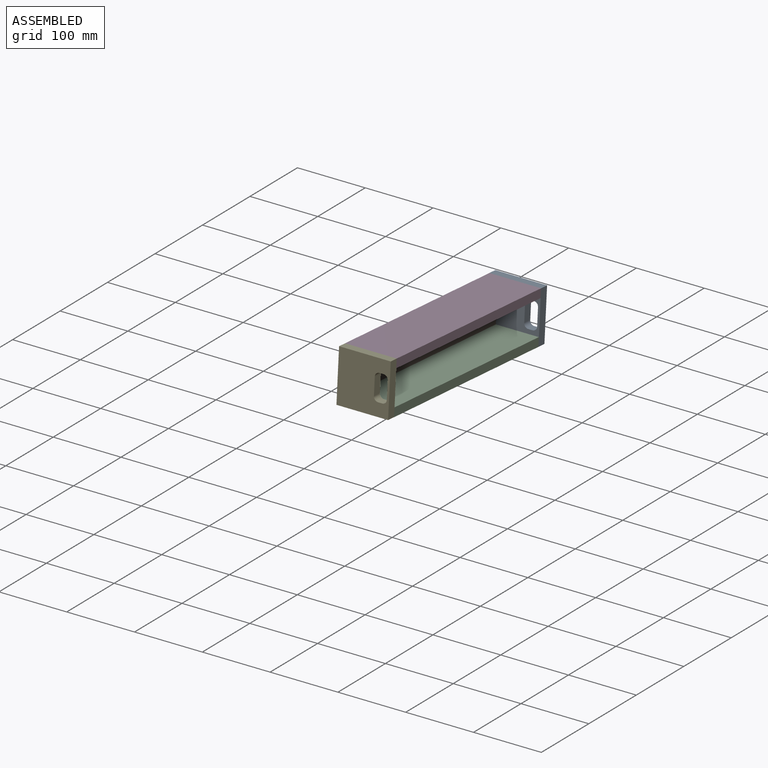
[diagram: assembled view]
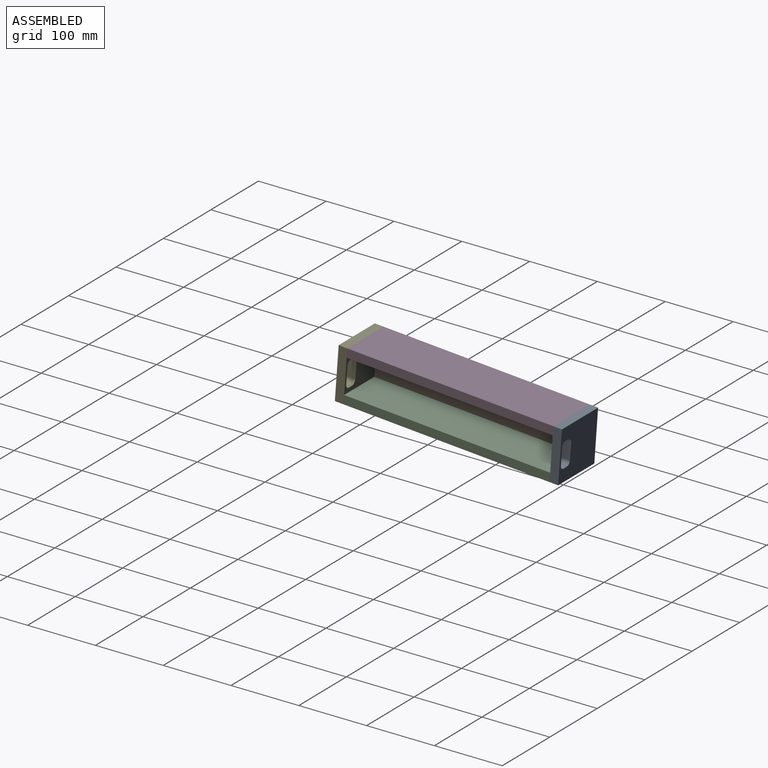
[diagram: assembled view, second angle]
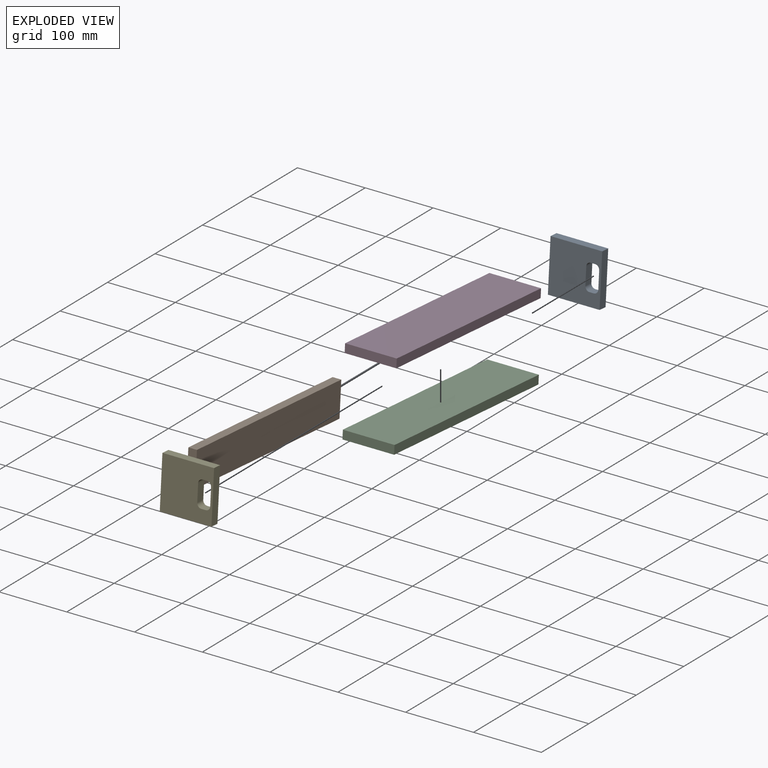
[diagram: exploded view]
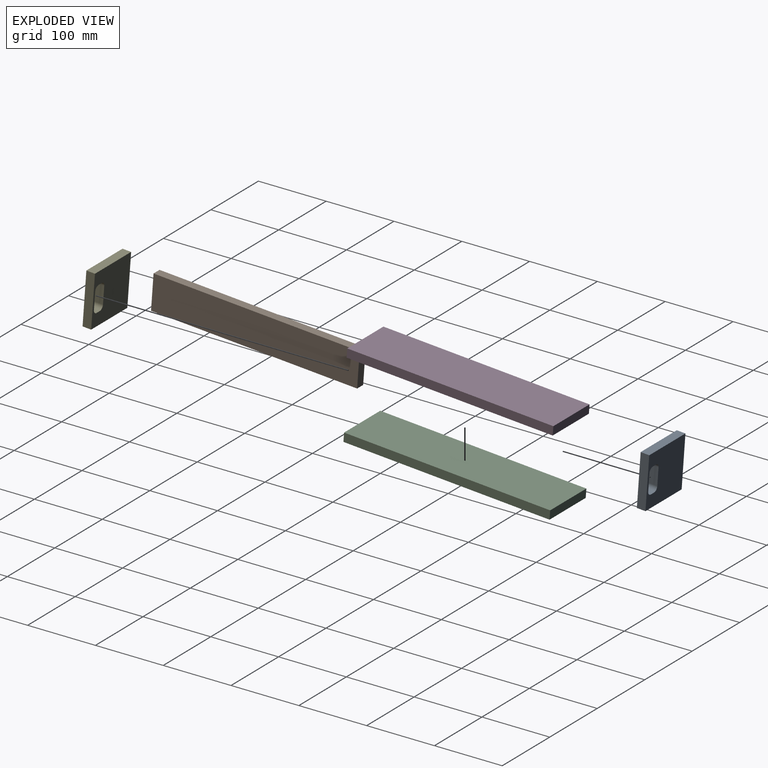
[diagram: exploded view, second angle]
ASSEMBLY  parts=5 mates=4
PART A: 14 faces, bbox 76.2x12.7x76.2 mm
  f0: plane 76.2x76.2mm, normal (0,-1,0), area 5115.2mm2, adj f2,f3,f4,f5,f6,f7,f8,f9
  f1: plane 76.2x76.2mm, normal (0,1,0), area 5115.2mm2, adj f2,f3,f4,f5,f6,f7,f8,f9
  f2: plane 76.2x12.7mm, normal (1,0,0), area 967.7mm2, adj f0,f1,f3,f5
  f3: plane 76.2x12.7mm, normal (0,0,1), area 967.7mm2, adj f0,f1,f2,f4
  f4: plane 76.2x12.7mm, normal (-1,0,0), area 967.7mm2, adj f0,f1,f3,f5
  f5: plane 76.2x12.7mm, normal (0,0,-1), area 967.7mm2, adj f0,f1,f2,f4
  f6: plane 25.4x12.7mm, normal (0,0,1), area 322.6mm2, adj f0,f1,f7,f13
  f7: cylinder r=6.35mm len=12.7mm, axis (0,-1,0), area 126.7mm2, adj f0,f1,f6,f8
  f8: plane 12.7x6.35mm, normal (-1,0,0), area 80.6mm2, adj f0,f1,f7,f9
  f9: cylinder r=6.35mm len=12.7mm, axis (0,-1,0), area 126.7mm2, adj f0,f1,f8,f10
  f10: plane 25.4x12.7mm, normal (0,0,-1), area 322.6mm2, adj f0,f1,f9,f11
  f11: cylinder r=6.35mm len=12.7mm, axis (0,-1,0), area 126.7mm2, adj f0,f1,f10,f12
  f12: plane 12.7x6.35mm, normal (1,0,0), area 80.6mm2, adj f0,f1,f11,f13
  f13: cylinder r=6.35mm len=12.7mm, axis (0,-1,0), area 126.7mm2, adj f0,f1,f6,f12
PART B: 6 faces, bbox 50.8x304.8x12.7 mm
  f0: plane 304.8x12.7mm, normal (1,0,0), area 3871mm2, adj f1,f3,f4,f5
  f1: plane 304.8x50.8mm, normal (0,0,1), area 15483.8mm2, adj f0,f2,f4,f5
  f2: plane 304.8x12.7mm, normal (-1,0,0), area 3871mm2, adj f1,f3,f4,f5
  f3: plane 304.8x50.8mm, normal (0,0,-1), area 15483.8mm2, adj f0,f2,f4,f5
  f4: plane 50.8x12.7mm, normal (0,-1,0), area 645.2mm2, adj f0,f1,f2,f3
  f5: plane 50.8x12.7mm, normal (0,1,0), area 645.2mm2, adj f0,f1,f2,f3
PART C: 6 faces, bbox 76.2x304.8x12.7 mm
  f0: plane 304.8x12.7mm, normal (1,0,0), area 3871mm2, adj f1,f3,f4,f5
  f1: plane 304.8x76.2mm, normal (0,0,1), area 23225.8mm2, adj f0,f2,f4,f5
  f2: plane 304.8x12.7mm, normal (-1,0,0), area 3871mm2, adj f1,f3,f4,f5
  f3: plane 304.8x76.2mm, normal (0,0,-1), area 23225.8mm2, adj f0,f2,f4,f5
  f4: plane 76.2x12.7mm, normal (0,-1,0), area 967.7mm2, adj f0,f1,f2,f3
  f5: plane 76.2x12.7mm, normal (0,1,0), area 967.7mm2, adj f0,f1,f2,f3
PART D: same geometry as C
PART E: same geometry as A
PLACE A rot(axis=(-0.04,1,-0.04),90.1deg) t=(-37.58,165.51,-54.48)mm
PLACE B rot(axis=(-0.04,1,-0.04),90.1deg) t=(-69.33,0.85,-42.34)mm
PLACE C rot(axis=(-1,0,0),4.2deg) t=(-37.58,-1.48,-74.01)mm
PLACE D rot(axis=(-1,0,0),4.2deg) t=(-37.58,3.19,-10.68)mm
PLACE E rot(axis=(-0.04,1,-0.04),90.1deg) t=(-37.58,-151.13,-31.14)mm
MATE fastened D.f3 <-> B.f2  axis (0,-0.07,-1) through (-75.68,-149.27,-5.81)mm
MATE fastened B.f0 <-> C.f1  axis (0,-0.07,-1) through (-75.68,-1.01,-67.67)mm
MATE fastened E.f1 <-> D.f4  axis (0,1,-0.07) through (-75.68,-148.33,6.86)mm
MATE fastened A.f0 <-> C.f5  axis (0,-1,0.07) through (-75.68,150.04,-91.54)mm
